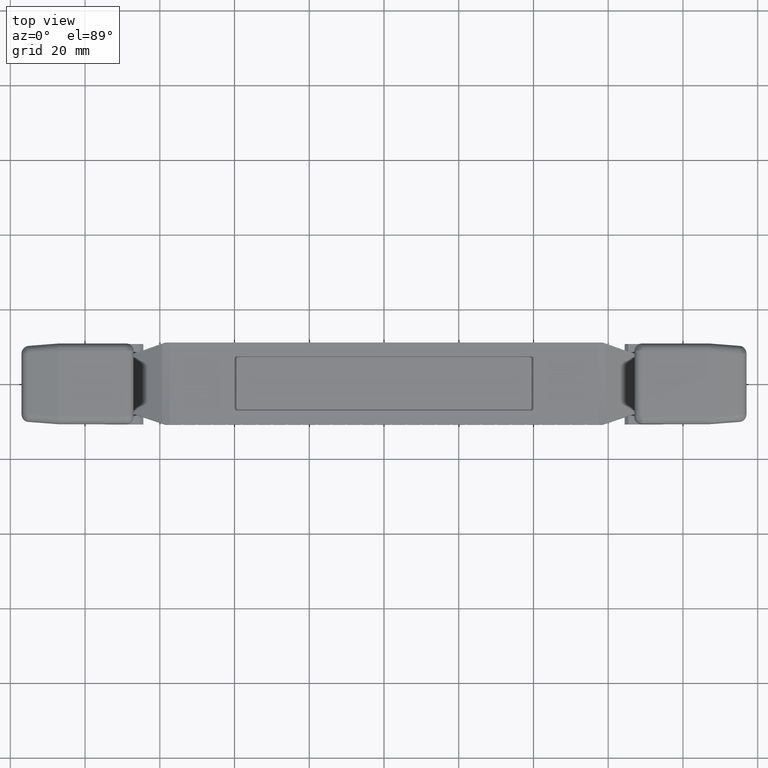
[diagram: clean part render]
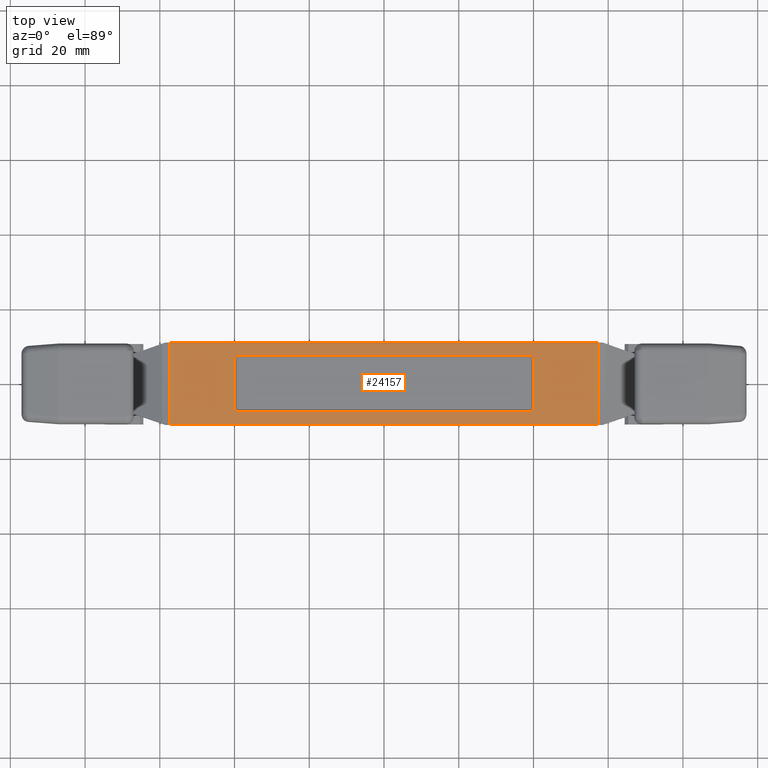
[diagram: same view with one face highlighted and labeled with its STEP entity id]
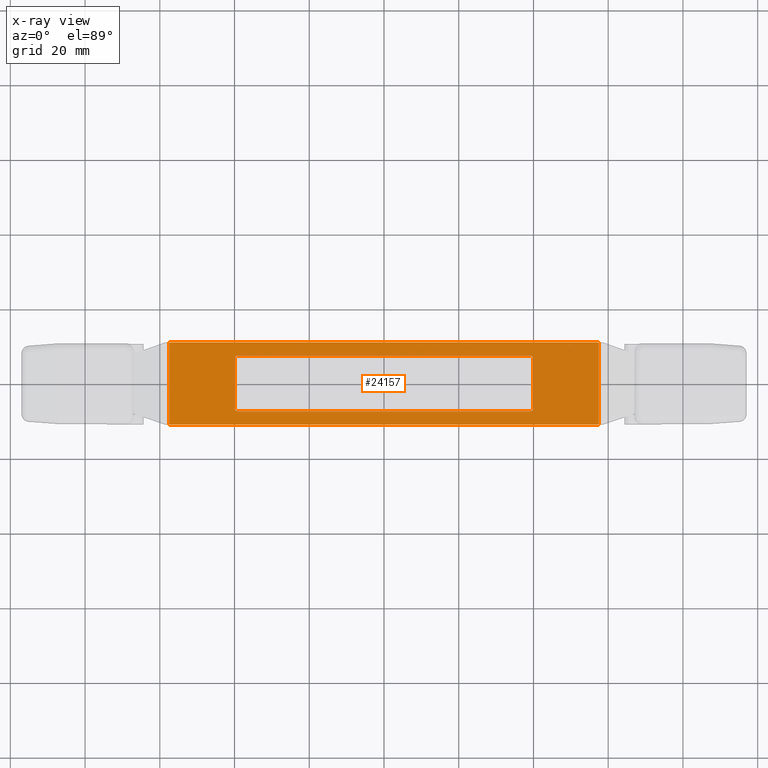
[diagram: x-ray of the same camera — body ghosted, the highlighted face saturated]
A machine part, top view. The second image highlights one B-rep face of the part: STEP entity #24157.
The next image is the same camera in x-ray: the body ghosted, the highlighted face saturated — about 0% of this face is hidden behind the body in this view.
In plain terms, the highlighted face is a freeform B-spline surface patch.
Its self-contained STEP definition (entity closure, byte-faithful):
#3713=CARTESIAN_POINT('',(-57.462695930785500,-11.0,8.0));
#3714=VERTEX_POINT('',#3713);
#3728=CARTESIAN_POINT('',(-57.462695930785500,11.0,8.0));
#3729=VERTEX_POINT('',#3728);
#3730=CARTESIAN_POINT('',(-57.462695930785500,11.0,8.0));
#3731=CARTESIAN_POINT('',(-57.462695930785500,-11.0,8.0));
#3732=QUASI_UNIFORM_CURVE('',1,(#3730,#3731),.UNSPECIFIED.,.F.,.U.);
#3733=EDGE_CURVE('',#3729,#3714,#3732,.T.);
#3765=CARTESIAN_POINT('',(57.462295916517803,11.0,8.0));
#3766=VERTEX_POINT('',#3765);
#3782=CARTESIAN_POINT('',(57.462295916517803,-11.0,8.0));
#3783=VERTEX_POINT('',#3782);
#3784=CARTESIAN_POINT('',(57.462295916517803,-11.0,8.0));
#3785=CARTESIAN_POINT('',(57.462295916517803,11.0,8.0));
#3786=QUASI_UNIFORM_CURVE('',1,(#3784,#3785),.UNSPECIFIED.,.F.,.U.);
#3787=EDGE_CURVE('',#3783,#3766,#3786,.T.);
#23082=CARTESIAN_POINT('',(39.0,7.500000000000000,8.0));
#23083=VERTEX_POINT('',#23082);
#23089=CARTESIAN_POINT('',(-39.000300000000003,7.500000000000090,7.999999999999900));
#23090=VERTEX_POINT('',#23089);
#23091=CARTESIAN_POINT('',(39.0,7.500000000000000,8.0));
#23092=CARTESIAN_POINT('',(-39.000300000000003,7.500000000000090,7.999999999999900));
#23093=QUASI_UNIFORM_CURVE('',1,(#23091,#23092),.UNSPECIFIED.,.F.,.U.);
#23094=EDGE_CURVE('',#23083,#23090,#23093,.T.);
#23283=CARTESIAN_POINT('',(40.0,6.499999999999890,7.999999999999900));
#23284=VERTEX_POINT('',#23283);
#23290=CARTESIAN_POINT('',(40.0,6.499999999999890,7.999999999999900));
#23291=CARTESIAN_POINT('',(39.999999999999993,7.499999999999891,7.999999999999901));
#23292=CARTESIAN_POINT('',(39.0,7.500000000000000,8.0));
#23300=(BOUNDED_CURVE()B_SPLINE_CURVE(2,(#23290,#23291,#23292),.UNSPECIFIED.,.F.,.U.)CURVE()GEOMETRIC_REPRESENTATION_ITEM()QUASI_UNIFORM_CURVE()RATIONAL_B_SPLINE_CURVE((1.0,0.707106781186548,1.0))REPRESENTATION_ITEM(''));
#23301=EDGE_CURVE('',#23284,#23083,#23300,.T.);
#23313=CARTESIAN_POINT('',(40.0,-6.500000000000000,7.999999999999900));
#23314=VERTEX_POINT('',#23313);
#23320=CARTESIAN_POINT('',(40.0,-6.500000000000000,7.999999999999900));
#23321=CARTESIAN_POINT('',(40.0,6.499999999999890,7.999999999999900));
#23322=QUASI_UNIFORM_CURVE('',1,(#23320,#23321),.UNSPECIFIED.,.F.,.U.);
#23323=EDGE_CURVE('',#23314,#23284,#23322,.T.);
#23344=CARTESIAN_POINT('',(39.0,-7.499999999999920,7.999999999999900));
#23345=VERTEX_POINT('',#23344);
#23351=CARTESIAN_POINT('',(39.0,-7.500000000000000,7.999999999999900));
#23352=CARTESIAN_POINT('',(39.999999999999993,-7.500000000000000,7.999999999999901));
#23353=CARTESIAN_POINT('',(40.0,-6.500000000000000,7.999999999999900));
#23361=(BOUNDED_CURVE()B_SPLINE_CURVE(2,(#23351,#23352,#23353),.UNSPECIFIED.,.F.,.U.)CURVE()GEOMETRIC_REPRESENTATION_ITEM()QUASI_UNIFORM_CURVE()RATIONAL_B_SPLINE_CURVE((1.0,0.707106781186548,1.0))REPRESENTATION_ITEM(''));
#23362=EDGE_CURVE('',#23345,#23314,#23361,.T.);
#23374=CARTESIAN_POINT('',(-39.000300000000003,-7.500000000000000,7.999999999999900));
#23375=VERTEX_POINT('',#23374);
#23381=CARTESIAN_POINT('',(-39.000300000000003,-7.500000000000000,7.999999999999900));
#23382=CARTESIAN_POINT('',(39.0,-7.499999999999920,7.999999999999900));
#23383=QUASI_UNIFORM_CURVE('',1,(#23381,#23382),.UNSPECIFIED.,.F.,.U.);
#23384=EDGE_CURVE('',#23375,#23345,#23383,.T.);
#23405=CARTESIAN_POINT('',(-40.000300000000003,-6.500000000000000,7.999999999999900));
#23406=VERTEX_POINT('',#23405);
#23412=CARTESIAN_POINT('',(-40.000300000000003,-6.500000000000000,7.999999999999900));
#23413=CARTESIAN_POINT('',(-40.000299999999996,-7.500000000000000,7.999999999999901));
#23414=CARTESIAN_POINT('',(-39.000300000000003,-7.500000000000000,7.999999999999900));
#23422=(BOUNDED_CURVE()B_SPLINE_CURVE(2,(#23412,#23413,#23414),.UNSPECIFIED.,.F.,.U.)CURVE()GEOMETRIC_REPRESENTATION_ITEM()QUASI_UNIFORM_CURVE()RATIONAL_B_SPLINE_CURVE((1.0,0.707106781186548,1.0))REPRESENTATION_ITEM(''));
#23423=EDGE_CURVE('',#23406,#23375,#23422,.T.);
#23435=CARTESIAN_POINT('',(-40.000300000000003,6.499999999999890,7.999999999999900));
#23436=VERTEX_POINT('',#23435);
#23442=CARTESIAN_POINT('',(-40.000300000000003,6.499999999999890,7.999999999999900));
#23443=CARTESIAN_POINT('',(-40.000300000000003,-6.500000000000000,7.999999999999900));
#23444=QUASI_UNIFORM_CURVE('',1,(#23442,#23443),.UNSPECIFIED.,.F.,.U.);
#23445=EDGE_CURVE('',#23436,#23406,#23444,.T.);
#23467=CARTESIAN_POINT('',(-39.000300000000003,7.500000000000090,7.999999999999900));
#23468=CARTESIAN_POINT('',(-40.000299999999996,7.499999999999891,7.999999999999901));
#23469=CARTESIAN_POINT('',(-40.000300000000003,6.499999999999890,7.999999999999900));
#23477=(BOUNDED_CURVE()B_SPLINE_CURVE(2,(#23467,#23468,#23469),.UNSPECIFIED.,.F.,.U.)CURVE()GEOMETRIC_REPRESENTATION_ITEM()QUASI_UNIFORM_CURVE()RATIONAL_B_SPLINE_CURVE((1.0,0.707106781186548,1.0))REPRESENTATION_ITEM(''));
#23478=EDGE_CURVE('',#23090,#23436,#23477,.T.);
#24128=CARTESIAN_POINT('',(-63.203199050811378,-12.098899957359730,8.0));
#24129=CARTESIAN_POINT('',(63.202802119072167,-12.098899957359730,8.0));
#24130=CARTESIAN_POINT('',(-63.203199050811378,12.098900547445711,8.0));
#24131=CARTESIAN_POINT('',(63.202802119072167,12.098900547445711,8.0));
#24132=B_SPLINE_SURFACE_WITH_KNOTS('',1,1,((#24128,#24130),(#24129,#24131)),.UNSPECIFIED.,.F.,.F.,.U.,(2,2),(2,2),(0.0,126.406001169883600),(0.0,24.197800504805439),.UNSPECIFIED.);
#24133=CARTESIAN_POINT('',(57.462295916517803,-11.0,8.0));
#24134=CARTESIAN_POINT('',(-57.462695930785500,-11.0,8.0));
#24135=QUASI_UNIFORM_CURVE('',1,(#24133,#24134),.UNSPECIFIED.,.F.,.U.);
#24136=EDGE_CURVE('',#3783,#3714,#24135,.T.);
#24137=ORIENTED_EDGE('',*,*,#24136,.F.);
#24138=ORIENTED_EDGE('',*,*,#3787,.T.);
#24139=CARTESIAN_POINT('',(57.462295916517803,11.0,8.0));
#24140=CARTESIAN_POINT('',(-57.462695930785500,11.0,8.0));
#24141=QUASI_UNIFORM_CURVE('',1,(#24139,#24140),.UNSPECIFIED.,.F.,.U.);
#24142=EDGE_CURVE('',#3766,#3729,#24141,.T.);
#24143=ORIENTED_EDGE('',*,*,#24142,.T.);
#24144=ORIENTED_EDGE('',*,*,#3733,.T.);
#24145=EDGE_LOOP('',(#24137,#24138,#24143,#24144));
#24146=FACE_OUTER_BOUND('',#24145,.T.);
#24147=ORIENTED_EDGE('',*,*,#23445,.F.);
#24148=ORIENTED_EDGE('',*,*,#23478,.F.);
#24149=ORIENTED_EDGE('',*,*,#23094,.F.);
#24150=ORIENTED_EDGE('',*,*,#23301,.F.);
#24151=ORIENTED_EDGE('',*,*,#23323,.F.);
#24152=ORIENTED_EDGE('',*,*,#23362,.F.);
#24153=ORIENTED_EDGE('',*,*,#23384,.F.);
#24154=ORIENTED_EDGE('',*,*,#23423,.F.);
#24155=EDGE_LOOP('',(#24147,#24148,#24149,#24150,#24151,#24152,#24153,#24154));
#24156=FACE_BOUND('',#24155,.T.);
#24157=ADVANCED_FACE('',(#24146,#24156),#24132,.T.);